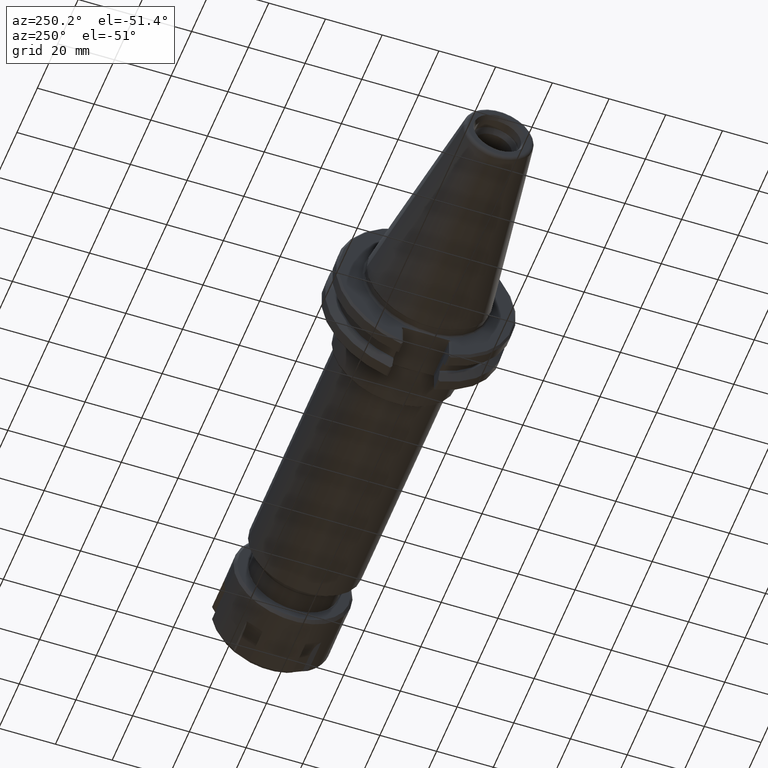
[diagram: clean part render]
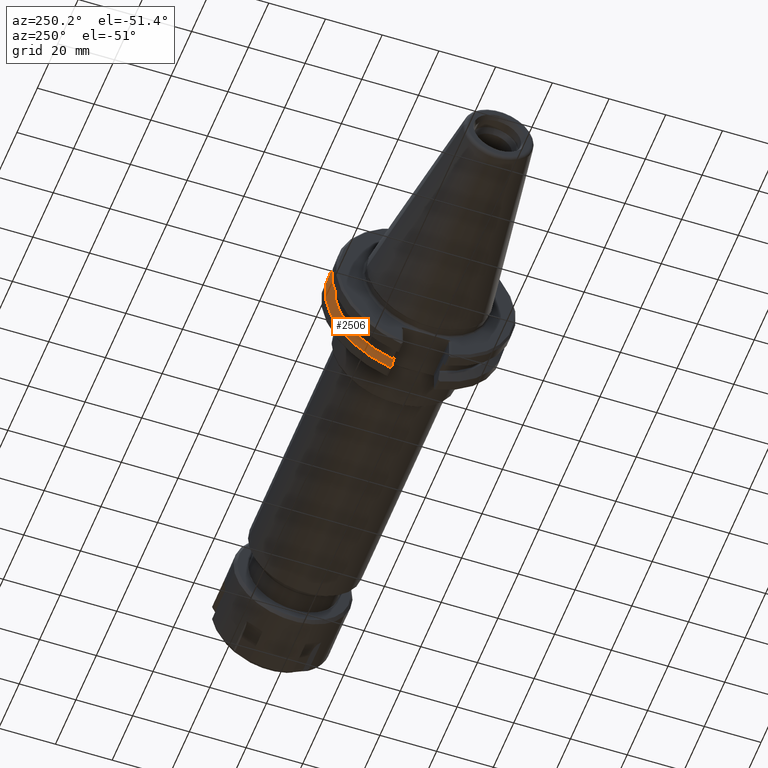
[diagram: same view with one face highlighted and labeled with its STEP entity id]
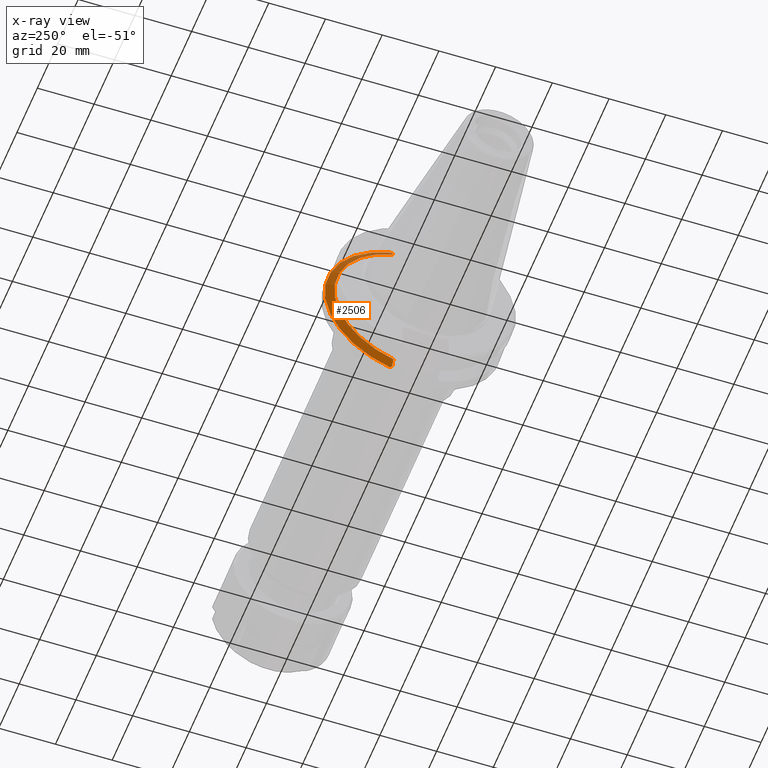
[diagram: x-ray of the same camera — body ghosted, the highlighted face saturated]
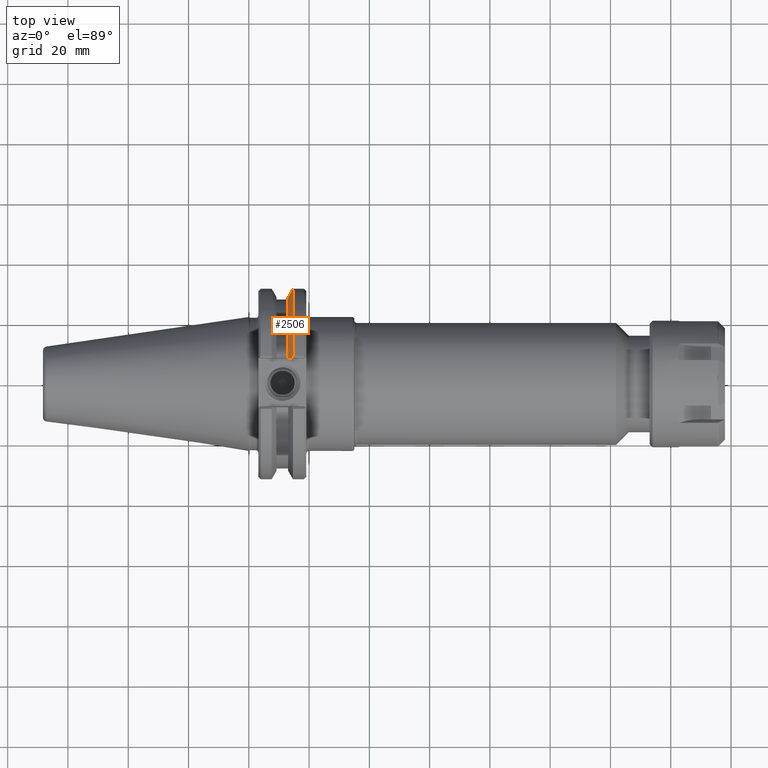
[diagram: same view with one face highlighted and labeled with its STEP entity id]
A machine part, auxiliary view. The second image highlights one B-rep face of the part: STEP entity #2506.
The next image is the same camera in x-ray: the body ghosted, the highlighted face saturated — about 3% of this face is hidden behind the body in this view.
A second angle (top view) of the same face is appended — the face is thin or edge-on in the first view.
In plain terms, the highlighted conical surface has half-angle 60 deg.
Its self-contained STEP definition (entity closure, byte-faithful):
#999=CARTESIAN_POINT('',(0.563230740453661,0.320000000000281,1.18334597694527));
#1000=VERTEX_POINT('',#999);
#1007=CARTESIAN_POINT('',(0.513849999999924,0.320000000000281,1.094499578944616));
#1008=VERTEX_POINT('',#1007);
#1009=CARTESIAN_POINT('',(0.51384999999979,0.320000000000281,1.094499578944375));
#1010=CARTESIAN_POINT('',(0.537577332827425,0.320000000000281,1.137317012232339));
#1011=CARTESIAN_POINT('',(0.563230740453661,0.320000000000281,1.18334597694527));
#1019=(BOUNDED_CURVE()B_SPLINE_CURVE(2,(#1009,#1010,#1011),.UNSPECIFIED.,.F.,.U.)B_SPLINE_CURVE_WITH_KNOTS((3,3),(0.0,0.260803090047858),.UNSPECIFIED.)CURVE()GEOMETRIC_REPRESENTATION_ITEM()RATIONAL_B_SPLINE_CURVE((1.0,1.000895493568113,1.000379364129248))REPRESENTATION_ITEM(''));
#1020=EDGE_CURVE('',#1008,#1000,#1019,.T.);
#1706=CARTESIAN_POINT('',(0.513849999999924,0.320000000000302,-1.09449957894461));
#1707=VERTEX_POINT('',#1706);
#1714=CARTESIAN_POINT('',(0.56323074045367,0.32000000000031,-1.183345976945278));
#1715=VERTEX_POINT('',#1714);
#1716=CARTESIAN_POINT('',(0.56323074045367,0.32000000000031,-1.183345976945278));
#1717=CARTESIAN_POINT('',(0.53757733282697,0.320000000000306,-1.137317012231516));
#1718=CARTESIAN_POINT('',(0.51384999999979,0.320000000000302,-1.094499578944369));
#1726=(BOUNDED_CURVE()B_SPLINE_CURVE(2,(#1716,#1717,#1718),.UNSPECIFIED.,.F.,.U.)B_SPLINE_CURVE_WITH_KNOTS((3,3),(0.07008906533153,0.330892155380645),.UNSPECIFIED.)CURVE()GEOMETRIC_REPRESENTATION_ITEM()RATIONAL_B_SPLINE_CURVE((1.000379364129154,1.000895493567906,1.0))REPRESENTATION_ITEM(''));
#1727=EDGE_CURVE('',#1715,#1707,#1726,.T.);
#2029=CARTESIAN_POINT('',(0.577173872226652,0.344098106798386,-1.201705659842612));
#2030=VERTEX_POINT('',#2029);
#2031=CARTESIAN_POINT('',(0.56323074045367,0.32000000000031,-1.183345976945278));
#2032=CARTESIAN_POINT('',(0.570095294562312,0.331931523167105,-1.1924362753517));
#2033=CARTESIAN_POINT('',(0.577173872227149,0.344098106799439,-1.201705659843396));
#2041=(BOUNDED_CURVE()B_SPLINE_CURVE(2,(#2031,#2032,#2033),.UNSPECIFIED.,.F.,.U.)B_SPLINE_CURVE_WITH_KNOTS((3,3),(0.310567973942218,0.391925496551485),.UNSPECIFIED.)CURVE()GEOMETRIC_REPRESENTATION_ITEM()RATIONAL_B_SPLINE_CURVE((1.000571469392811,1.000360586802784,1.0))REPRESENTATION_ITEM(''));
#2042=EDGE_CURVE('',#1715,#2030,#2041,.T.);
#2140=CARTESIAN_POINT('',(0.577173872226652,0.344098106798413,1.201705659842604));
#2141=VERTEX_POINT('',#2140);
#2142=CARTESIAN_POINT('',(0.577173872226652,0.0,0.0));
#2143=DIRECTION('',(1.0,1.624514E-013,0.0));
#2144=DIRECTION('',(-1.624514E-013,1.0,0.0));
#2145=AXIS2_PLACEMENT_3D('',#2142,#2143,#2144);
#2146=CIRCLE('',#2145,1.25);
#2147=EDGE_CURVE('',#2030,#2141,#2146,.T.);
#2243=CARTESIAN_POINT('',(0.577173872227002,0.344098106799196,1.201705659843201));
#2244=CARTESIAN_POINT('',(0.570095294562237,0.331931523166972,1.192436275351601));
#2245=CARTESIAN_POINT('',(0.563230740453661,0.320000000000281,1.18334597694527));
#2253=(BOUNDED_CURVE()B_SPLINE_CURVE(2,(#2243,#2244,#2245),.UNSPECIFIED.,.F.,.U.)B_SPLINE_CURVE_WITH_KNOTS((3,3),(0.0,0.081357522608523),.UNSPECIFIED.)CURVE()GEOMETRIC_REPRESENTATION_ITEM()RATIONAL_B_SPLINE_CURVE((1.0,1.000360586802825,1.000571469392878))REPRESENTATION_ITEM(''));
#2254=EDGE_CURVE('',#2141,#1000,#2253,.T.);
#2487=CARTESIAN_POINT('',(0.59790647304228,3.154247E-013,0.0));
#2488=DIRECTION('',(1.0,1.624514E-013,0.0));
#2489=DIRECTION('',(-1.624821E-013,1.0,0.0));
#2490=AXIS2_PLACEMENT_3D('',#2487,#2488,#2489);
#2491=CONICAL_SURFACE('',#2490,1.285909917985699,59.999999999990706);
#2492=ORIENTED_EDGE('',*,*,#2042,.F.);
#2493=ORIENTED_EDGE('',*,*,#1727,.T.);
#2494=CARTESIAN_POINT('',(0.513849999999976,3.017696E-013,0.0));
#2495=DIRECTION('',(-1.0,-1.624821E-013,0.0));
#2496=DIRECTION('',(-1.624821E-013,1.0,0.0));
#2497=AXIS2_PLACEMENT_3D('',#2494,#2495,#2496);
#2498=CIRCLE('',#2497,1.140319835971438);
#2499=EDGE_CURVE('',#1008,#1707,#2498,.T.);
#2500=ORIENTED_EDGE('',*,*,#2499,.F.);
#2501=ORIENTED_EDGE('',*,*,#1020,.T.);
#2502=ORIENTED_EDGE('',*,*,#2254,.F.);
#2503=ORIENTED_EDGE('',*,*,#2147,.F.);
#2504=EDGE_LOOP('',(#2492,#2493,#2500,#2501,#2502,#2503));
#2505=FACE_OUTER_BOUND('',#2504,.T.);
#2506=ADVANCED_FACE('',(#2505),#2491,.T.);